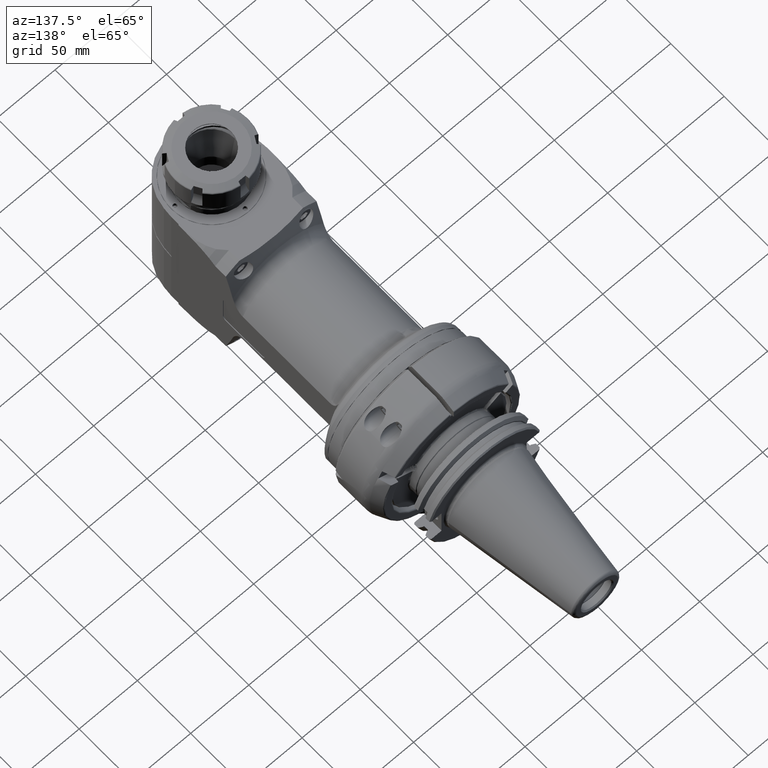
[diagram: clean part render]
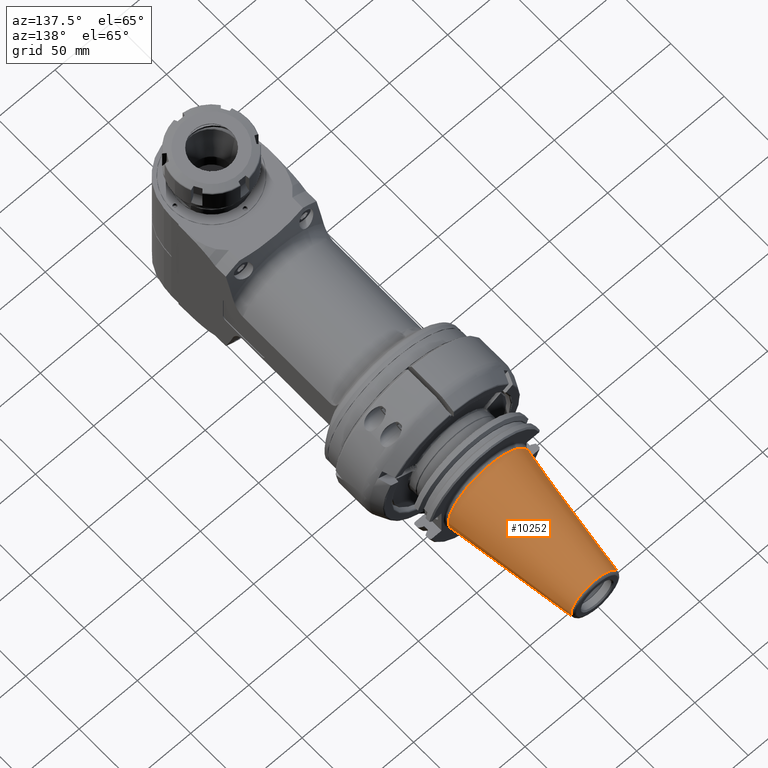
[diagram: same view with one face highlighted and labeled with its STEP entity id]
A machine part, auxiliary view. The second image highlights one B-rep face of the part: STEP entity #10252.
In plain terms, the highlighted conical surface has half-angle 8.297 deg.
Its self-contained STEP definition (entity closure, byte-faithful):
#118=CONICAL_SURFACE('',#11011,27.67265681028,0.144812411498922);
#787=CIRCLE('',#11009,34.925);
#788=CIRCLE('',#11010,34.925);
#789=CIRCLE('',#11012,20.42031362057);
#790=CIRCLE('',#11013,20.42031362057);
#1319=FACE_OUTER_BOUND('',#1951,.T.);
#1951=EDGE_LOOP('',(#7234,#7235,#7236,#7237,#7238,#7239));
#2844=LINE('',#15976,#3528);
#3528=VECTOR('',#12483,27.67265681028);
#4278=VERTEX_POINT('',#15969);
#4279=VERTEX_POINT('',#15970);
#4280=VERTEX_POINT('',#15975);
#4281=VERTEX_POINT('',#15977);
#5408=EDGE_CURVE('',#4278,#4279,#787,.T.);
#5410=EDGE_CURVE('',#4279,#4278,#788,.T.);
#5411=EDGE_CURVE('',#4278,#4280,#2844,.T.);
#5412=EDGE_CURVE('',#4281,#4280,#789,.T.);
#5413=EDGE_CURVE('',#4280,#4281,#790,.T.);
#7234=ORIENTED_EDGE('',*,*,#5408,.F.);
#7235=ORIENTED_EDGE('',*,*,#5411,.T.);
#7236=ORIENTED_EDGE('',*,*,#5412,.F.);
#7237=ORIENTED_EDGE('',*,*,#5413,.F.);
#7238=ORIENTED_EDGE('',*,*,#5411,.F.);
#7239=ORIENTED_EDGE('',*,*,#5410,.F.);
#10252=ADVANCED_FACE('',(#1319),#118,.T.);
#11009=AXIS2_PLACEMENT_3D('',#15971,#12476,#12477);
#11010=AXIS2_PLACEMENT_3D('',#15973,#12479,#12480);
#11011=AXIS2_PLACEMENT_3D('',#15974,#12481,#12482);
#11012=AXIS2_PLACEMENT_3D('',#15978,#12484,#12485);
#11013=AXIS2_PLACEMENT_3D('',#15979,#12486,#12487);
#12476=DIRECTION('center_axis',(0.,-1.,0.));
#12477=DIRECTION('ref_axis',(-1.,0.,0.));
#12479=DIRECTION('center_axis',(0.,-1.,0.));
#12480=DIRECTION('ref_axis',(-1.,0.,0.));
#12481=DIRECTION('center_axis',(0.,-1.,0.));
#12482=DIRECTION('ref_axis',(-1.,0.,0.));
#12483=DIRECTION('',(-0.144306807239621,0.98953299358046,-1.76724869581176E-17));
#12484=DIRECTION('center_axis',(0.,1.,0.));
#12485=DIRECTION('ref_axis',(-1.,0.,0.));
#12486=DIRECTION('center_axis',(0.,1.,0.));
#12487=DIRECTION('ref_axis',(-1.,0.,0.));
#15969=CARTESIAN_POINT('',(34.925,76.9999997692299,0.));
#15970=CARTESIAN_POINT('',(-34.9250000000012,76.9999997692296,4.27707894602227E-15));
#15971=CARTESIAN_POINT('Origin',(0.,76.9999997692299,0.));
#15973=CARTESIAN_POINT('Origin',(0.,76.9999997692299,0.));
#15974=CARTESIAN_POINT('Origin',(0.,126.73038327828,0.));
#15975=CARTESIAN_POINT('',(20.4203136205638,176.460766787329,2.50076717130085E-15));
#15976=CARTESIAN_POINT('',(27.67265681028,126.73038327828,3.38892305866126E-15));
#15977=CARTESIAN_POINT('',(2.50076717130162E-15,176.46076678733,-20.42031362057));
#15978=CARTESIAN_POINT('Origin',(0.,176.46076678733,0.));
#15979=CARTESIAN_POINT('Origin',(0.,176.46076678733,0.));